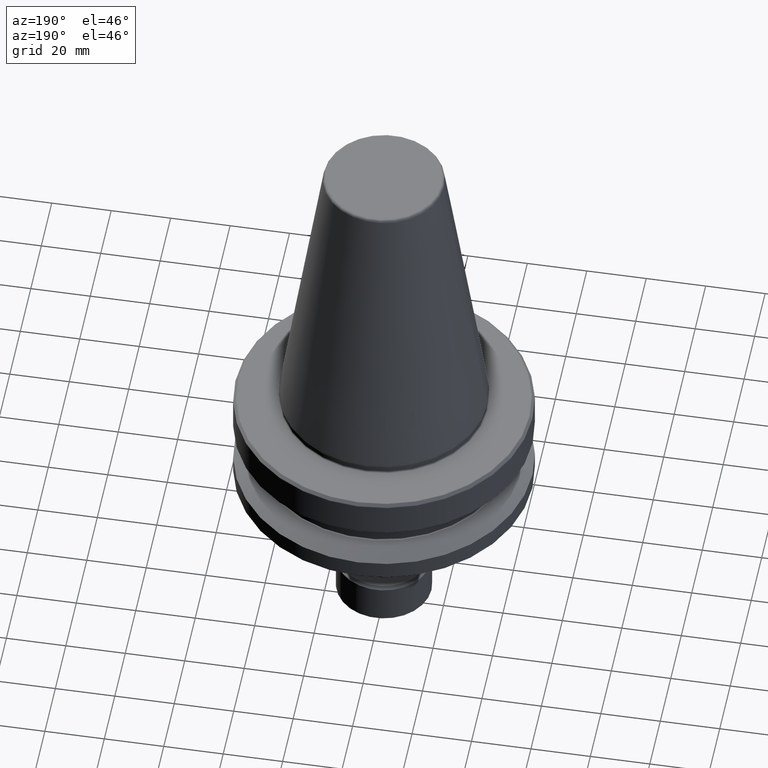
[diagram: clean part render]
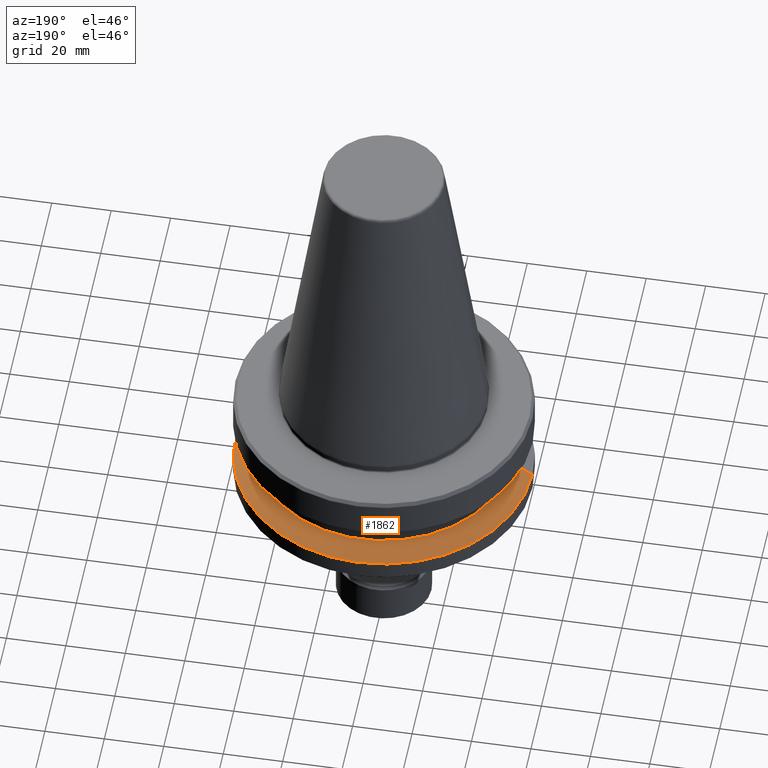
[diagram: same view with one face highlighted and labeled with its STEP entity id]
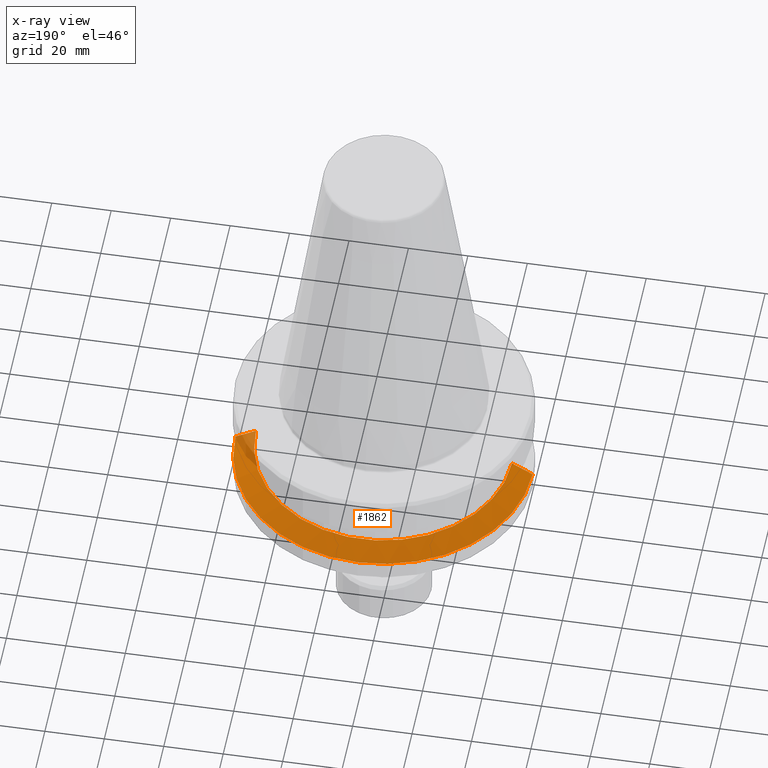
[diagram: x-ray of the same camera — body ghosted, the highlighted face saturated]
A machine part, auxiliary view. The second image highlights one B-rep face of the part: STEP entity #1862.
The next image is the same camera in x-ray: the body ghosted, the highlighted face saturated — about 4% of this face is hidden behind the body in this view.
In plain terms, the highlighted conical surface has half-angle 60 deg.
Its self-contained STEP definition (entity closure, byte-faithful):
#179 = CARTESIAN_POINT ( 'NONE',  ( 43.07217782649103600, 5.274820470751785100E-015, -26.70000000000000300 ) ) ;
#211 = VERTEX_POINT ( 'NONE', #1607 ) ;
#320 = CARTESIAN_POINT ( 'NONE',  ( -43.07217782649103600, 0.0000000000000000000, -26.70000000000000300 ) ) ;
#421 = CARTESIAN_POINT ( 'NONE',  ( 0.0000000000000000000, 0.0000000000000000000, -30.69977999677324500 ) ) ;
#453 = CARTESIAN_POINT ( 'NONE',  ( 43.07217782649103600, 5.699027233244276000E-015, -26.70000000000000300 ) ) ;
#504 = ORIENTED_EDGE ( 'NONE', *, *, #631, .F. ) ;
#589 = DIRECTION ( 'NONE',  ( 1.000000000000000000, 0.0000000000000000000, 0.0000000000000000000 ) ) ;
#631 = EDGE_CURVE ( 'NONE', #1457, #1283, #1267, .T. ) ;
#634 = CARTESIAN_POINT ( 'NONE',  ( 0.0000000000000000000, 0.0000000000000000000, -26.70000000000000300 ) ) ;
#638 = VERTEX_POINT ( 'NONE', #2147 ) ;
#735 = AXIS2_PLACEMENT_3D ( 'NONE', #421, #1584, #589 ) ;
#743 = CARTESIAN_POINT ( 'NONE',  ( -43.07217782649103600, 0.0000000000000000000, -26.70000000000000300 ) ) ;
#750 = EDGE_CURVE ( 'NONE', #1457, #211, #1009, .T. ) ;
#767 = CONICAL_SURFACE ( 'NONE', #2121, 43.07217782649103600, 1.047197551196599600 ) ;
#786 = DIRECTION ( 'NONE',  ( 1.000000000000000000, 0.0000000000000000000, 0.0000000000000000000 ) ) ;
#798 = EDGE_CURVE ( 'NONE', #211, #638, #930, .T. ) ;
#821 = VECTOR ( 'NONE', #1253, 1000.000000000000000 ) ;
#822 = FACE_OUTER_BOUND ( 'NONE', #1357, .T. ) ;
#840 = EDGE_CURVE ( 'NONE', #1283, #638, #847, .T. ) ;
#847 = LINE ( 'NONE', #743, #821 ) ;
#930 = CIRCLE ( 'NONE', #735, 50.00000000000000000 ) ;
#950 = ORIENTED_EDGE ( 'NONE', *, *, #840, .F. ) ;
#1007 = VECTOR ( 'NONE', #1316, 1000.000000000000000 ) ;
#1009 = LINE ( 'NONE', #179, #1007 ) ;
#1121 = ORIENTED_EDGE ( 'NONE', *, *, #750, .T. ) ;
#1253 = DIRECTION ( 'NONE',  ( -0.8660254037844396000, 0.0000000000000000000, -0.4999999999999983900 ) ) ;
#1267 = CIRCLE ( 'NONE', #1464, 43.07217782649103600 ) ;
#1283 = VERTEX_POINT ( 'NONE', #320 ) ;
#1316 = DIRECTION ( 'NONE',  ( 0.8660254037844396000, 1.060575238724908000E-016, -0.4999999999999983900 ) ) ;
#1357 = EDGE_LOOP ( 'NONE', ( #504, #1121, #1635, #950 ) ) ;
#1457 = VERTEX_POINT ( 'NONE', #453 ) ;
#1464 = AXIS2_PLACEMENT_3D ( 'NONE', #634, #1821, #786 ) ;
#1561 = DIRECTION ( 'NONE',  ( 0.0000000000000000000, 0.0000000000000000000, -1.000000000000000000 ) ) ;
#1584 = DIRECTION ( 'NONE',  ( -0.0000000000000000000, -0.0000000000000000000, 1.000000000000000000 ) ) ;
#1607 = CARTESIAN_POINT ( 'NONE',  ( 50.00000000000000000, 0.0000000000000000000, -30.69977999677324500 ) ) ;
#1635 = ORIENTED_EDGE ( 'NONE', *, *, #798, .T. ) ;
#1741 = DIRECTION ( 'NONE',  ( -1.000000000000000000, 0.0000000000000000000, 0.0000000000000000000 ) ) ;
#1821 = DIRECTION ( 'NONE',  ( -0.0000000000000000000, -0.0000000000000000000, 1.000000000000000000 ) ) ;
#1862 = ADVANCED_FACE ( 'NONE', ( #822 ), #767, .T. ) ;
#1918 = CARTESIAN_POINT ( 'NONE',  ( 0.0000000000000000000, 0.0000000000000000000, -26.70000000000000300 ) ) ;
#2121 = AXIS2_PLACEMENT_3D ( 'NONE', #1918, #1561, #1741 ) ;
#2147 = CARTESIAN_POINT ( 'NONE',  ( -50.00000000000000000, 6.123233995736766100E-015, -30.69977999677324500 ) ) ;